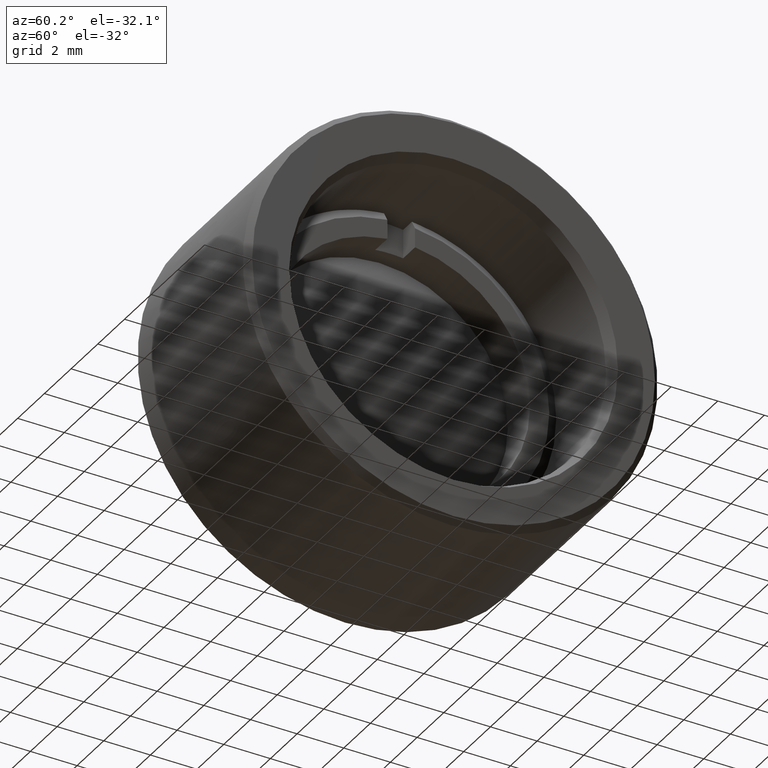
[diagram: clean part render]
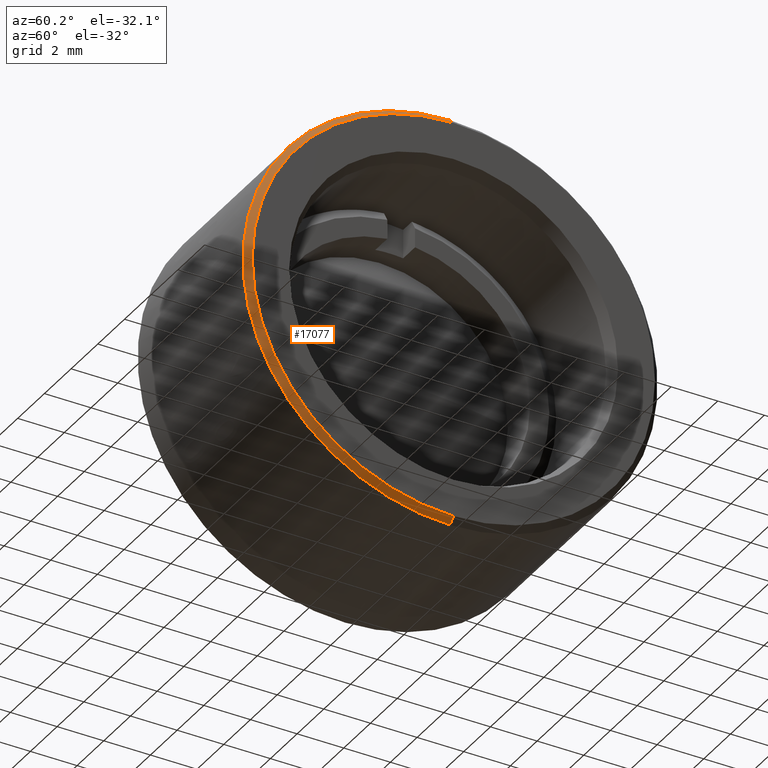
[diagram: same view with one face highlighted and labeled with its STEP entity id]
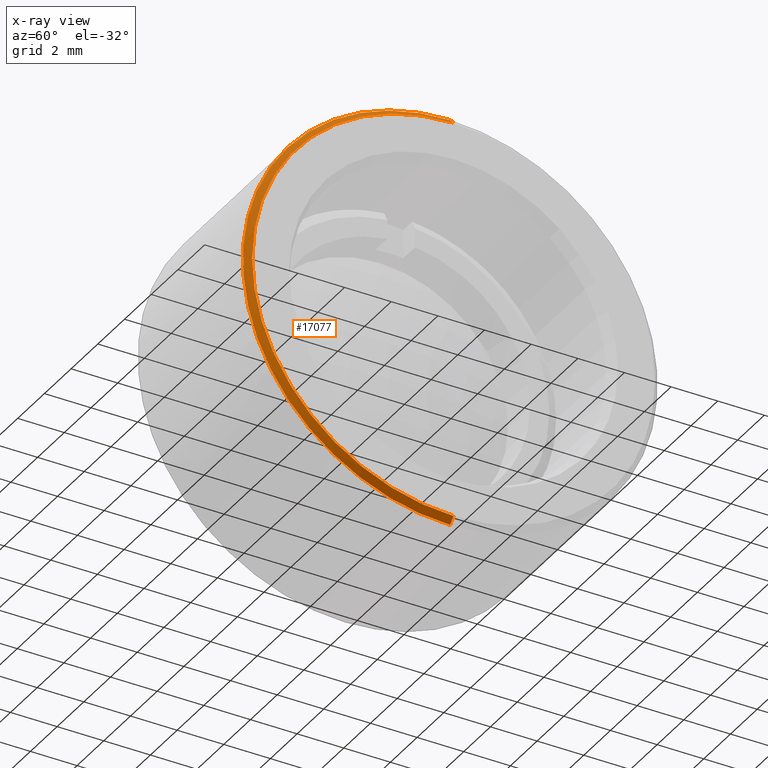
[diagram: x-ray of the same camera — body ghosted, the highlighted face saturated]
A machine part, auxiliary view. The second image highlights one B-rep face of the part: STEP entity #17077.
The next image is the same camera in x-ray: the body ghosted, the highlighted face saturated — about 0% of this face is hidden behind the body in this view.
In plain terms, the highlighted conical surface has half-angle 45 deg.
Its self-contained STEP definition (entity closure, byte-faithful):
#1464 = ORIENTED_EDGE ( 'NONE', *, *, #12486, .F. ) ;
#1672 = CARTESIAN_POINT ( 'NONE',  ( 0.2050000000000000400, 4.163799117101001500E-017, -0.3400000000000000800 ) ) ;
#4042 = AXIS2_PLACEMENT_3D ( 'NONE', #5565, #11045, #15236 ) ;
#4081 = ORIENTED_EDGE ( 'NONE', *, *, #5827, .F. ) ;
#4601 = CARTESIAN_POINT ( 'NONE',  ( 0.1950000000000000100, 0.0000000000000000000, -0.3499999999999999800 ) ) ;
#4861 = DIRECTION ( 'NONE',  ( 1.000000000000000000, -0.0000000000000000000, -0.0000000000000000000 ) ) ;
#5040 = ORIENTED_EDGE ( 'NONE', *, *, #10918, .F. ) ;
#5071 = CARTESIAN_POINT ( 'NONE',  ( 0.1950000000000000100, 0.0000000000000000000, 0.0000000000000000000 ) ) ;
#5558 = VERTEX_POINT ( 'NONE', #5573 ) ;
#5565 = CARTESIAN_POINT ( 'NONE',  ( 0.2050000000000000400, 0.0000000000000000000, 0.0000000000000000000 ) ) ;
#5573 = CARTESIAN_POINT ( 'NONE',  ( 0.1950000000000000100, 4.286263797015736000E-017, 0.3499999999999999800 ) ) ;
#5698 = FACE_OUTER_BOUND ( 'NONE', #11924, .T. ) ;
#5827 = EDGE_CURVE ( 'NONE', #17914, #5558, #7628, .T. ) ;
#6473 = DIRECTION ( 'NONE',  ( 0.0000000000000000000, 0.0000000000000000000, -1.000000000000000000 ) ) ;
#7007 = DIRECTION ( 'NONE',  ( -0.7071067811865523500, 0.0000000000000000000, 0.7071067811865426900 ) ) ;
#7628 = CIRCLE ( 'NONE', #15091, 0.3499999999999999800 ) ;
#8272 = ORIENTED_EDGE ( 'NONE', *, *, #9672, .T. ) ;
#8393 = CARTESIAN_POINT ( 'NONE',  ( 0.2050000000000000400, 0.0000000000000000000, 0.3400000000000000800 ) ) ;
#8812 = LINE ( 'NONE', #1672, #12955 ) ;
#9023 = CARTESIAN_POINT ( 'NONE',  ( 0.2050000000000000400, 4.225031457058368500E-017, -0.3400000000000000800 ) ) ;
#9672 = EDGE_CURVE ( 'NONE', #14745, #5558, #10760, .T. ) ;
#10760 = LINE ( 'NONE', #8393, #14448 ) ;
#10918 = EDGE_CURVE ( 'NONE', #17827, #17914, #8812, .T. ) ;
#11045 = DIRECTION ( 'NONE',  ( -1.000000000000000000, 0.0000000000000000000, 0.0000000000000000000 ) ) ;
#11180 = AXIS2_PLACEMENT_3D ( 'NONE', #13164, #4861, #14529 ) ;
#11318 = DIRECTION ( 'NONE',  ( -0.7071067811865523500, 8.659560562354872500E-017, -0.7071067811865426900 ) ) ;
#11924 = EDGE_LOOP ( 'NONE', ( #5040, #1464, #8272, #4081 ) ) ;
#12486 = EDGE_CURVE ( 'NONE', #14745, #17827, #17029, .T. ) ;
#12955 = VECTOR ( 'NONE', #11318, 39.37007874015748100 ) ;
#13164 = CARTESIAN_POINT ( 'NONE',  ( 0.2050000000000000400, 0.0000000000000000000, 0.0000000000000000000 ) ) ;
#14448 = VECTOR ( 'NONE', #7007, 39.37007874015748100 ) ;
#14529 = DIRECTION ( 'NONE',  ( 0.0000000000000000000, 0.0000000000000000000, -1.000000000000000000 ) ) ;
#14742 = DIRECTION ( 'NONE',  ( -1.000000000000000000, 0.0000000000000000000, 0.0000000000000000000 ) ) ;
#14745 = VERTEX_POINT ( 'NONE', #17343 ) ;
#15091 = AXIS2_PLACEMENT_3D ( 'NONE', #5071, #14742, #6473 ) ;
#15236 = DIRECTION ( 'NONE',  ( 0.0000000000000000000, 0.0000000000000000000, 1.000000000000000000 ) ) ;
#15890 = CONICAL_SURFACE ( 'NONE', #4042, 0.3400000000000000800, 0.7853981633974415100 ) ;
#17029 = CIRCLE ( 'NONE', #11180, 0.3400000000000000800 ) ;
#17077 = ADVANCED_FACE ( 'NONE', ( #5698 ), #15890, .T. ) ;
#17343 = CARTESIAN_POINT ( 'NONE',  ( 0.2050000000000000400, 0.0000000000000000000, 0.3400000000000000800 ) ) ;
#17827 = VERTEX_POINT ( 'NONE', #9023 ) ;
#17914 = VERTEX_POINT ( 'NONE', #4601 ) ;